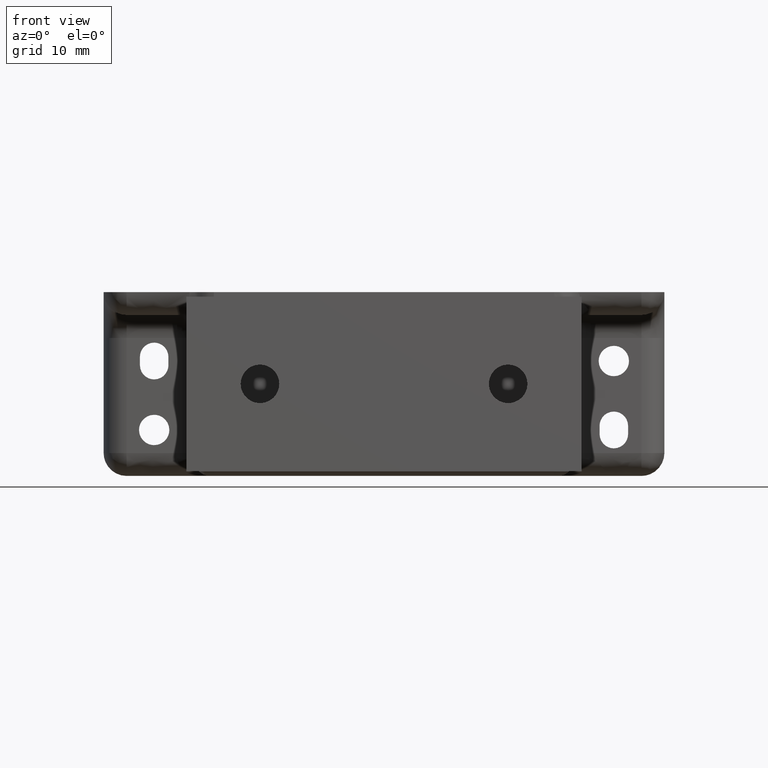
[diagram: clean part render]
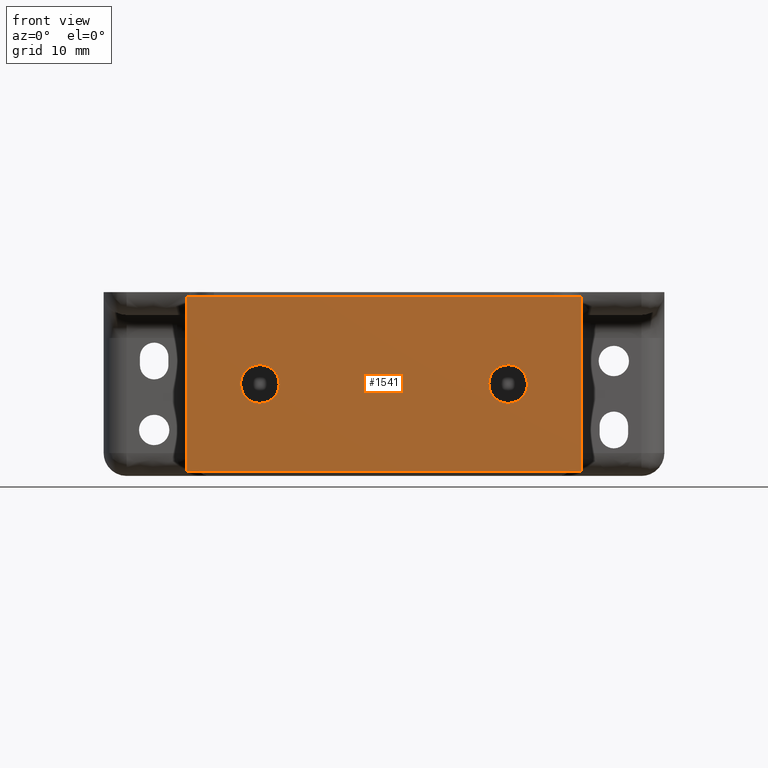
[diagram: same view with one face highlighted and labeled with its STEP entity id]
A machine part, front view. The second image highlights one B-rep face of the part: STEP entity #1541.
In plain terms, the highlighted face is a freeform B-spline surface patch.
Its self-contained STEP definition (entity closure, byte-faithful):
#1128=CARTESIAN_POINT('',(12.028090660486271,-47.0,1.497825773749786));
#1129=VERTEX_POINT('',#1128);
#1135=CARTESIAN_POINT('',(11.399999999999920,-47.0,-0.000000807498128));
#1136=VERTEX_POINT('',#1135);
#1137=CARTESIAN_POINT('',(12.028090660486271,-47.0,1.497825773749786));
#1138=CARTESIAN_POINT('',(11.904167012592231,-47.0,1.376091015659198));
#1139=CARTESIAN_POINT('',(11.664979858884029,-47.0,1.074219634692807));
#1140=CARTESIAN_POINT('',(11.447626648038749,-47.0,0.555897475823759));
#1141=CARTESIAN_POINT('',(11.399973419959901,-47.000000000000007,0.173712879252786));
#1142=CARTESIAN_POINT('',(11.399999999999920,-47.0,-0.000000807498128));
#1143=B_SPLINE_CURVE_WITH_KNOTS('',3,(#1137,#1138,#1139,#1140,#1141,#1142),.UNSPECIFIED.,.F.,.U.,(4,1,1,4),(0.000000022479062,0.521151242452008,1.146522268927258,1.667673488923789),.UNSPECIFIED.);
#1144=EDGE_CURVE('',#1129,#1136,#1143,.T.);
#1146=CARTESIAN_POINT('',(13.499999999999760,-47.0,-2.099999999999943));
#1147=VERTEX_POINT('',#1146);
#1148=CARTESIAN_POINT('',(11.399999999999920,-47.0,-0.000000807498128));
#1149=CARTESIAN_POINT('',(11.399883256527749,-47.0,-0.214773785124679));
#1150=CARTESIAN_POINT('',(11.454533344420250,-47.000000000000007,-0.566898017638456));
#1151=CARTESIAN_POINT('',(11.658584771570300,-46.999999999999993,-1.042928278557611));
#1152=CARTESIAN_POINT('',(11.894677510764099,-46.999999999999993,-1.373820510546398));
#1153=CARTESIAN_POINT('',(12.181661728390379,-47.000000000000007,-1.647021183838219));
#1154=CARTESIAN_POINT('',(12.474533692357690,-46.999999999999993,-1.845315460341858));
#1155=CARTESIAN_POINT('',(12.915938489888520,-47.000000000000007,-2.041052741551115));
#1156=CARTESIAN_POINT('',(13.268042919181610,-47.0,-2.100128808978801));
#1157=CARTESIAN_POINT('',(13.499999999999760,-47.0,-2.099999999999943));
#1158=B_SPLINE_CURVE_WITH_KNOTS('',3,(#1148,#1149,#1150,#1151,#1152,#1153,#1154,#1155,#1156,#1157),.UNSPECIFIED.,.F.,.U.,(4,1,1,1,1,1,1,4),(0.000000089307902,0.644273718494905,1.056615097985564,1.546271754136542,1.855501016229106,2.242077196754492,2.602875581304252,3.298692528923817),.UNSPECIFIED.);
#1159=EDGE_CURVE('',#1136,#1147,#1158,.T.);
#1161=CARTESIAN_POINT('',(14.971909339513250,-47.0,-1.497825773749675));
#1162=VERTEX_POINT('',#1161);
#1163=CARTESIAN_POINT('',(13.499999999999760,-47.0,-2.099999999999943));
#1164=CARTESIAN_POINT('',(13.703889027585239,-47.000000000000007,-2.100082898247917));
#1165=CARTESIAN_POINT('',(14.026635161281860,-47.0,-2.052606692054017));
#1166=CARTESIAN_POINT('',(14.534122793848960,-47.0,-1.852127953879874));
#1167=CARTESIAN_POINT('',(14.814453948017380,-47.000000000000007,-1.652745261058912));
#1168=CARTESIAN_POINT('',(14.971909339513250,-47.0,-1.497825773749675));
#1169=B_SPLINE_CURVE_WITH_KNOTS('',3,(#1163,#1164,#1165,#1166,#1167,#1168),.UNSPECIFIED.,.F.,.U.,(4,1,1,4),(0.000000020118032,0.611637966266827,0.968413138128671,1.631020151742099),.UNSPECIFIED.);
#1170=EDGE_CURVE('',#1147,#1162,#1169,.T.);
#1200=CARTESIAN_POINT('',(15.599999999999611,-47.0,0.000000807498226));
#1201=VERTEX_POINT('',#1200);
#1202=CARTESIAN_POINT('',(14.971909339513250,-47.0,-1.497825773749675));
#1203=CARTESIAN_POINT('',(15.133082038997911,-47.0,-1.339623183032449));
#1204=CARTESIAN_POINT('',(15.377503378792760,-47.0,-1.006016624586858));
#1205=CARTESIAN_POINT('',(15.565082036651230,-47.0,-0.477718630270735));
#1206=CARTESIAN_POINT('',(15.600014858336250,-46.999999999999993,-0.147655538800611));
#1207=CARTESIAN_POINT('',(15.599999999999611,-47.0,0.000000807498226));
#1208=B_SPLINE_CURVE_WITH_KNOTS('',3,(#1202,#1203,#1204,#1205,#1206,#1207),.UNSPECIFIED.,.F.,.U.,(4,1,1,4),(0.000000022479173,0.677497825453956,1.224697557405014,1.667673488923773),.UNSPECIFIED.);
#1209=EDGE_CURVE('',#1162,#1201,#1208,.T.);
#1211=CARTESIAN_POINT('',(13.499999999999760,-47.0,2.100000000000057));
#1212=VERTEX_POINT('',#1211);
#1213=CARTESIAN_POINT('',(15.599999999999611,-47.0,0.000000807498226));
#1214=CARTESIAN_POINT('',(15.600275520490991,-46.999999999999993,0.266346634507889));
#1215=CARTESIAN_POINT('',(15.517139762474359,-47.000000000000007,0.695649211849302));
#1216=CARTESIAN_POINT('',(15.249044269808190,-46.999999999999993,1.189786875771238));
#1217=CARTESIAN_POINT('',(14.986085341550270,-47.000000000000021,1.498400103099575));
#1218=CARTESIAN_POINT('',(14.674592625774521,-46.999999999999993,1.757276446871793));
#1219=CARTESIAN_POINT('',(14.195656658233871,-46.999999999999979,2.017163700238140));
#1220=CARTESIAN_POINT('',(13.766340482057229,-47.000000000000028,2.100252162597673));
#1221=CARTESIAN_POINT('',(13.499999999999760,-47.0,2.100000000000057));
#1222=B_SPLINE_CURVE_WITH_KNOTS('',3,(#1213,#1214,#1215,#1216,#1217,#1218,#1219,#1220,#1221),.UNSPECIFIED.,.F.,.U.,(4,1,1,1,1,1,4),(0.000000089304217,0.798902035468644,1.288565889158781,1.675090054552414,2.010126904949844,2.499790523840492,3.298692528923844),.UNSPECIFIED.);
#1223=EDGE_CURVE('',#1201,#1212,#1222,.T.);
#1225=CARTESIAN_POINT('',(13.499999999999760,-47.0,2.100000000000057));
#1226=CARTESIAN_POINT('',(13.262113270524120,-47.0,2.100182768286380));
#1227=CARTESIAN_POINT('',(12.905456639005161,-47.0,2.038694302319482));
#1228=CARTESIAN_POINT('',(12.408306682899530,-47.000000000000007,1.813812452349960));
#1229=CARTESIAN_POINT('',(12.161346019964210,-47.0,1.628873252727855));
#1230=CARTESIAN_POINT('',(12.028090660486271,-47.0,1.497825773749786));
#1231=B_SPLINE_CURVE_WITH_KNOTS('',3,(#1225,#1226,#1227,#1228,#1229,#1230),.UNSPECIFIED.,.F.,.U.,(4,1,1,4),(0.000000020118480,0.713576250831892,1.070352769421788,1.631020151742094),.UNSPECIFIED.);
#1232=EDGE_CURVE('',#1212,#1129,#1231,.T.);
#1261=CARTESIAN_POINT('',(-14.971909339513640,-47.0,1.497825773749899));
#1262=VERTEX_POINT('',#1261);
#1268=CARTESIAN_POINT('',(-15.600000000000010,-47.0,-0.000000807498016));
#1269=VERTEX_POINT('',#1268);
#1270=CARTESIAN_POINT('',(-14.971909339513640,-47.0,1.497825773749899));
#1271=CARTESIAN_POINT('',(-15.133061943471310,-47.0,1.339610187740057));
#1272=CARTESIAN_POINT('',(-15.377530288305840,-46.999999999999993,1.006030154728016));
#1273=CARTESIAN_POINT('',(-15.565071973393151,-47.0,0.477714821479612));
#1274=CARTESIAN_POINT('',(-15.600016360426849,-47.000000000000007,0.147655648686799));
#1275=CARTESIAN_POINT('',(-15.600000000000010,-47.0,-0.000000807498016));
#1276=B_SPLINE_CURVE_WITH_KNOTS('',3,(#1270,#1271,#1272,#1273,#1274,#1275),.UNSPECIFIED.,.F.,.U.,(4,1,1,4),(0.000000022478295,0.677497825453424,1.224697557404788,1.667673488923804),.UNSPECIFIED.);
#1277=EDGE_CURVE('',#1262,#1269,#1276,.T.);
#1279=CARTESIAN_POINT('',(-13.500000000000160,-47.0,-2.099999999999830));
#1280=VERTEX_POINT('',#1279);
#1281=CARTESIAN_POINT('',(-15.600000000000010,-47.0,-0.000000807498016));
#1282=CARTESIAN_POINT('',(-15.600015441811310,-47.000000000000007,-0.137441722452213));
#1283=CARTESIAN_POINT('',(-15.572073206316301,-46.999999999999993,-0.420916024914501));
#1284=CARTESIAN_POINT('',(-15.433995687881101,-47.0,-0.866421238523250));
#1285=CARTESIAN_POINT('',(-15.178365360444690,-47.0,-1.298917440787482));
#1286=CARTESIAN_POINT('',(-14.823379939801820,-46.999999999999993,-1.653860460399853));
#1287=CARTESIAN_POINT('',(-14.413158928252040,-47.000000000000007,-1.910131474458114));
#1288=CARTESIAN_POINT('',(-13.972453803336739,-46.999999999999957,-2.064742232125352));
#1289=CARTESIAN_POINT('',(-13.654623356739940,-47.000000000000043,-2.100028023805758));
#1290=CARTESIAN_POINT('',(-13.500000000000160,-47.0,-2.099999999999830));
#1291=B_SPLINE_CURVE_WITH_KNOTS('',3,(#1281,#1282,#1283,#1284,#1285,#1286,#1287,#1288,#1289,#1290),.UNSPECIFIED.,.F.,.U.,(4,1,1,1,1,1,1,4),(0.000000089308310,0.412324212566897,0.850444293773626,1.391650440849600,1.907042375092551,2.345163256072937,2.834825807059665,3.298692528923825),.UNSPECIFIED.);
#1292=EDGE_CURVE('',#1269,#1280,#1291,.T.);
#1294=CARTESIAN_POINT('',(-12.028090660486670,-47.0,-1.497825773749561));
#1295=VERTEX_POINT('',#1294);
#1296=CARTESIAN_POINT('',(-13.500000000000160,-47.0,-2.099999999999830));
#1297=CARTESIAN_POINT('',(-13.262118657603210,-47.0,-2.100175472172037));
#1298=CARTESIAN_POINT('',(-12.862976958168639,-47.0,-2.031401061365588));
#1299=CARTESIAN_POINT('',(-12.371399962721769,-47.0,-1.790810634091557));
#1300=CARTESIAN_POINT('',(-12.131080431154640,-47.0,-1.599059328166097));
#1301=CARTESIAN_POINT('',(-12.028090660486670,-47.0,-1.497825773749561));
#1302=B_SPLINE_CURVE_WITH_KNOTS('',3,(#1296,#1297,#1298,#1299,#1300,#1301),.UNSPECIFIED.,.F.,.U.,(4,1,1,4),(0.000000020118148,0.713576250831697,1.197780279329787,1.631020151742093),.UNSPECIFIED.);
#1303=EDGE_CURVE('',#1280,#1295,#1302,.T.);
#1333=CARTESIAN_POINT('',(-11.400000000000320,-47.0,0.000000807498340));
#1334=VERTEX_POINT('',#1333);
#1335=CARTESIAN_POINT('',(-12.028090660486670,-47.0,-1.497825773749561));
#1336=CARTESIAN_POINT('',(-11.922761164368129,-47.0,-1.394343805512651));
#1337=CARTESIAN_POINT('',(-11.722958415543950,-47.0,-1.151560141575769));
#1338=CARTESIAN_POINT('',(-11.471729053981470,-47.0,-0.651335185695586));
#1339=CARTESIAN_POINT('',(-11.399834177633689,-47.0,-0.243223069205230));
#1340=CARTESIAN_POINT('',(-11.400000000000320,-47.0,0.000000807498340));
#1341=B_SPLINE_CURVE_WITH_KNOTS('',3,(#1335,#1336,#1337,#1338,#1339,#1340),.UNSPECIFIED.,.F.,.U.,(4,1,1,4),(0.000000022479141,0.442975953997706,0.938061574229366,1.667673488923774),.UNSPECIFIED.);
#1342=EDGE_CURVE('',#1295,#1334,#1341,.T.);
#1344=CARTESIAN_POINT('',(-13.500000000000160,-47.0,2.100000000000170));
#1345=VERTEX_POINT('',#1344);
#1346=CARTESIAN_POINT('',(-11.400000000000320,-47.0,0.000000807498340));
#1347=CARTESIAN_POINT('',(-11.399834923320240,-46.999999999999993,0.249142775019468));
#1348=CARTESIAN_POINT('',(-11.471133625604240,-47.000000000000007,0.644170992495956));
#1349=CARTESIAN_POINT('',(-11.686068035354420,-46.999999999999993,1.077501541681246));
#1350=CARTESIAN_POINT('',(-11.902851065854540,-47.0,1.377426986391762));
#1351=CARTESIAN_POINT('',(-12.201872285609900,-47.000000000000007,1.676563766092731));
#1352=CARTESIAN_POINT('',(-12.631898228409710,-46.999999999999993,1.937914988507786));
#1353=CARTESIAN_POINT('',(-13.096260405640930,-47.0,2.075599897477491));
#1354=CARTESIAN_POINT('',(-13.379741209278009,-47.000000000000007,2.100005942269997));
#1355=CARTESIAN_POINT('',(-13.500000000000160,-47.0,2.100000000000170));
#1356=B_SPLINE_CURVE_WITH_KNOTS('',3,(#1346,#1347,#1348,#1349,#1350,#1351,#1352,#1353,#1354,#1355),.UNSPECIFIED.,.F.,.U.,(4,1,1,1,1,1,1,4),(0.000000089307574,0.747359514631748,1.185479724463108,1.443191796726418,1.855501016228402,2.448248313382988,2.937911931464610,3.298692528923839),.UNSPECIFIED.);
#1357=EDGE_CURVE('',#1334,#1345,#1356,.T.);
#1359=CARTESIAN_POINT('',(-13.500000000000160,-47.0,2.100000000000170));
#1360=CARTESIAN_POINT('',(-13.627422669118600,-47.000000000000007,2.100009647376249));
#1361=CARTESIAN_POINT('',(-13.907743443966931,-47.0,2.074415270859787));
#1362=CARTESIAN_POINT('',(-14.431665908567490,-47.0,1.917433332302832));
#1363=CARTESIAN_POINT('',(-14.784230203634490,-47.0,1.682622843757569));
#1364=CARTESIAN_POINT('',(-14.971909339513640,-47.0,1.497825773749899));
#1365=B_SPLINE_CURVE_WITH_KNOTS('',3,(#1359,#1360,#1361,#1362,#1363,#1364),.UNSPECIFIED.,.F.,.U.,(4,1,1,4),(0.000000020117423,0.382270071768302,0.840982431353054,1.631020151742095),.UNSPECIFIED.);
#1366=EDGE_CURVE('',#1345,#1262,#1365,.T.);
#1432=CARTESIAN_POINT('',(21.499999999999751,-47.000000000000448,-9.500000000019810));
#1433=VERTEX_POINT('',#1432);
#1439=CARTESIAN_POINT('',(-21.500000000000000,-47.000000000000448,-9.500000000019670));
#1440=VERTEX_POINT('',#1439);
#1441=CARTESIAN_POINT('',(21.499999999999751,-47.000000000000448,-9.500000000019810));
#1442=CARTESIAN_POINT('',(-21.500000000000000,-47.000000000000448,-9.500000000019670));
#1443=QUASI_UNIFORM_CURVE('',1,(#1441,#1442),.UNSPECIFIED.,.F.,.U.);
#1444=EDGE_CURVE('',#1433,#1440,#1443,.T.);
#1460=CARTESIAN_POINT('',(21.499999999999751,-47.000000000000448,9.499999999980281));
#1461=VERTEX_POINT('',#1460);
#1467=CARTESIAN_POINT('',(21.499999999999751,-47.000000000000448,9.499999999980281));
#1468=CARTESIAN_POINT('',(21.499999999999751,-47.000000000000448,-9.500000000019810));
#1469=QUASI_UNIFORM_CURVE('',1,(#1467,#1468),.UNSPECIFIED.,.F.,.U.);
#1470=EDGE_CURVE('',#1461,#1433,#1469,.T.);
#1482=CARTESIAN_POINT('',(-21.500000000000000,-47.000000000000448,9.499999999980332));
#1483=VERTEX_POINT('',#1482);
#1489=CARTESIAN_POINT('',(-21.500000000000000,-47.000000000000448,9.499999999980332));
#1490=CARTESIAN_POINT('',(21.499999999999751,-47.000000000000448,9.499999999980281));
#1491=QUASI_UNIFORM_CURVE('',1,(#1489,#1490),.UNSPECIFIED.,.F.,.U.);
#1492=EDGE_CURVE('',#1483,#1461,#1491,.T.);
#1505=CARTESIAN_POINT('',(-21.500000000000000,-47.000000000000448,-9.500000000019670));
#1506=CARTESIAN_POINT('',(-21.500000000000000,-47.000000000000448,9.499999999980332));
#1507=QUASI_UNIFORM_CURVE('',1,(#1505,#1506),.UNSPECIFIED.,.F.,.U.);
#1508=EDGE_CURVE('',#1440,#1483,#1507,.T.);
#1514=CARTESIAN_POINT('',(-23.647849916657641,-47.000000000000441,10.449049963154650));
#1515=CARTESIAN_POINT('',(23.647851070007270,-47.000000000000441,10.449049963154650));
#1516=CARTESIAN_POINT('',(-23.647849916657648,-47.000000000000441,-10.449050472813850));
#1517=CARTESIAN_POINT('',(23.647851070007270,-47.000000000000441,-10.449050472813850));
#1518=B_SPLINE_SURFACE_WITH_KNOTS('',1,1,((#1514,#1516),(#1515,#1517)),.UNSPECIFIED.,.F.,.F.,.U.,(2,2),(2,2),(0.0,47.295700986664919),(0.0,20.898100435968502),.UNSPECIFIED.);
#1519=ORIENTED_EDGE('',*,*,#1508,.F.);
#1520=ORIENTED_EDGE('',*,*,#1444,.F.);
#1521=ORIENTED_EDGE('',*,*,#1470,.F.);
#1522=ORIENTED_EDGE('',*,*,#1492,.F.);
#1523=EDGE_LOOP('',(#1519,#1520,#1521,#1522));
#1524=FACE_OUTER_BOUND('',#1523,.T.);
#1525=ORIENTED_EDGE('',*,*,#1292,.F.);
#1526=ORIENTED_EDGE('',*,*,#1277,.F.);
#1527=ORIENTED_EDGE('',*,*,#1366,.F.);
#1528=ORIENTED_EDGE('',*,*,#1357,.F.);
#1529=ORIENTED_EDGE('',*,*,#1342,.F.);
#1530=ORIENTED_EDGE('',*,*,#1303,.F.);
#1531=EDGE_LOOP('',(#1525,#1526,#1527,#1528,#1529,#1530));
#1532=FACE_BOUND('',#1531,.T.);
#1533=ORIENTED_EDGE('',*,*,#1159,.F.);
#1534=ORIENTED_EDGE('',*,*,#1144,.F.);
#1535=ORIENTED_EDGE('',*,*,#1232,.F.);
#1536=ORIENTED_EDGE('',*,*,#1223,.F.);
#1537=ORIENTED_EDGE('',*,*,#1209,.F.);
#1538=ORIENTED_EDGE('',*,*,#1170,.F.);
#1539=EDGE_LOOP('',(#1533,#1534,#1535,#1536,#1537,#1538));
#1540=FACE_BOUND('',#1539,.T.);
#1541=ADVANCED_FACE('',(#1524,#1532,#1540),#1518,.F.);